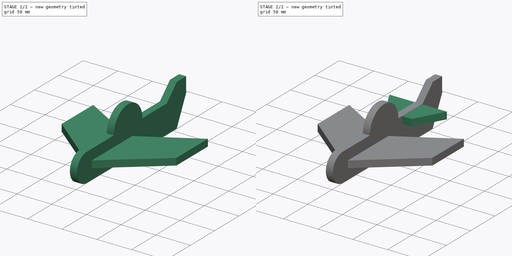
[diagram: build sequence overview — one tinted view per stage of 2, left to right]
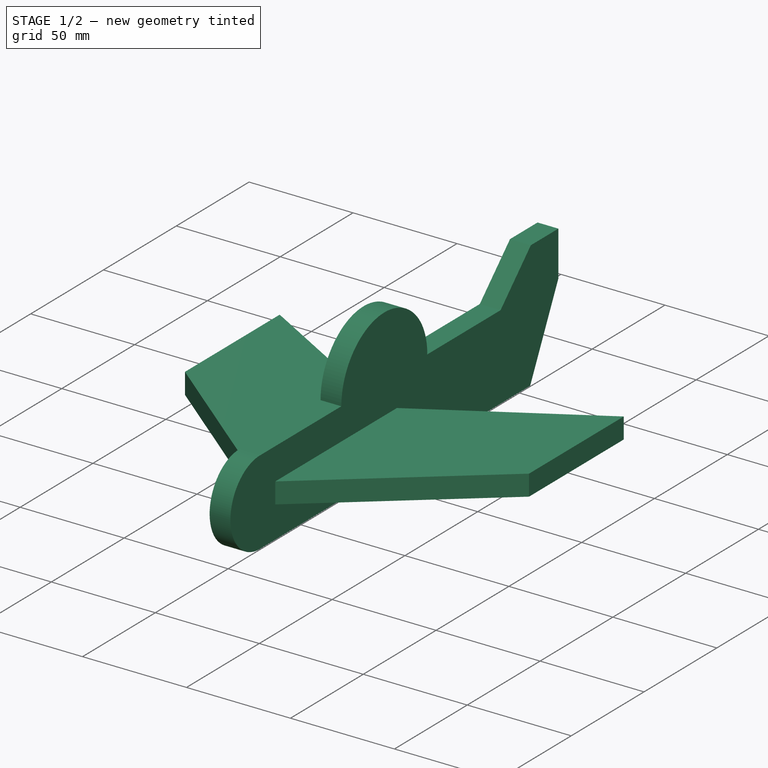
[diagram: stage 1 of 2 — iso view after this stage's code; geometry added in this stage tinted green]
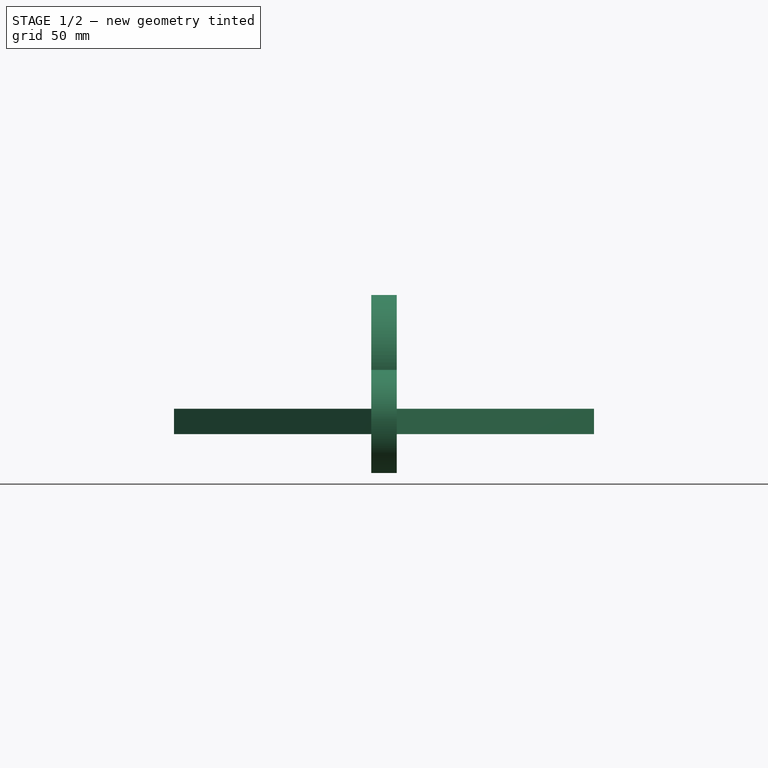
[diagram: stage 1 of 2 — front view after this stage's code; geometry added in this stage tinted green]
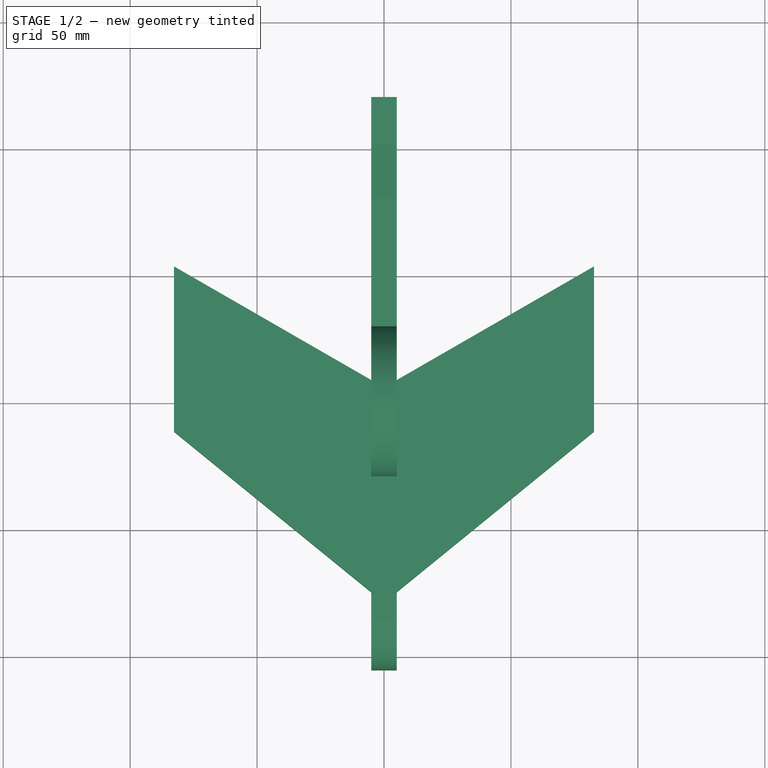
[diagram: stage 1 of 2 — top view after this stage's code; geometry added in this stage tinted green]
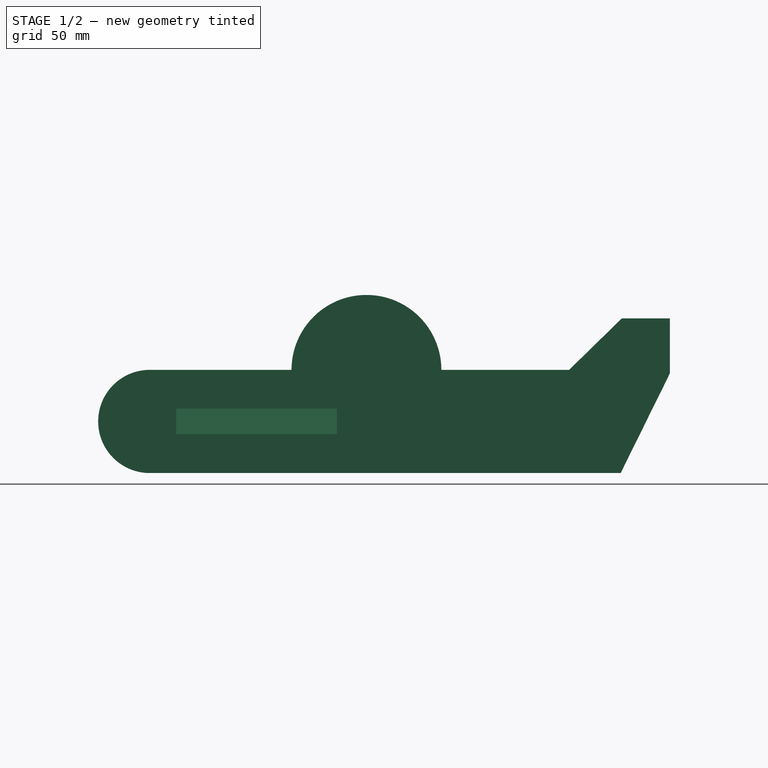
[diagram: stage 1 of 2 — right view after this stage's code; geometry added in this stage tinted green]
FCSTD DOCUMENT  (FreeCAD 0.18R4 (GitTag))
Label: 2
License: All rights reserved
LicenseURL: http://en.wikipedia.org/wiki/All_rights_reserved
objects: Sketcher::SketchObject×3, PartDesign::Pad×3, PartDesign::Body×1
note: 10 computed .brp shape members not serialized (recipe doc carries the construction recipe); baked Part::Feature solids carry a one-line shape summary decoded from their .brp

FEATURE [Sketcher::SketchObject] Sketch
  MapMode = 5
  Placement = pos=(0,0,0) rot=(0.57735,0.57735,0.57735;2.0944rad)
  Support = -> [YZ_Plane]
  sketch-geometry (10):
    g0: LineSegment StartX=79.9853 StartY=20.323 StartZ=0 EndX=100.764 EndY=40.6142 EndZ=0
    g1: LineSegment StartX=100.764 StartY=40.6142 StartZ=0 EndX=119.662 EndY=40.6142 EndZ=0
    g2: LineSegment StartX=119.662 StartY=40.6142 StartZ=0 EndX=119.662 EndY=18.903 EndZ=0
    g3: LineSegment StartX=119.662 StartY=18.903 StartZ=0 EndX=100.308 EndY=-20.29 EndZ=0
    g4: LineSegment StartX=100.308 StartY=-20.29 StartZ=0 EndX=-84.0343 EndY=-20.29 EndZ=0
    g5: LineSegment [constr] StartX=29.6634 StartY=20.323 StartZ=0 EndX=-29.3682 EndY=20.323 EndZ=0
    g6: ArcOfCircle CenterX=-85.2092 CenterY=0 CenterZ=0 NormalX=0 NormalY=0 NormalZ=1 AngleXU=0 Radius=20.324 StartAngle=1.561 EndAngle=4.77023
    g7: ArcOfCircle CenterX=0.147601 CenterY=20.323 CenterZ=0 NormalX=0 NormalY=0 NormalZ=1 AngleXU=0 Radius=29.5158 StartAngle=0 EndAngle=3.14159
    g8: LineSegment StartX=-85.0101 StartY=20.323 StartZ=0 EndX=-29.3682 EndY=20.323 EndZ=0
    g9: LineSegment StartX=29.6634 StartY=20.323 StartZ=0 EndX=79.9853 EndY=20.323 EndZ=0
  constraints (19):
    c: Coincident(g0,g1)
    c: Coincident(g1,g2)
    c: Coincident(g2,g3)
    c: Horizontal(g4)
    c: Vertical(g2)
    c: Horizontal(g1)
    c: Coincident(g6,g4)
    c: Coincident(g7,g5)
    c: Coincident(g7,g5)
    c: PointOnObject(g6,g-1)
    c: Horizontal(g8)
    c: Coincident(g8,g6)
    c: Coincident(g8,g7)
    c: Coincident(g9,g7)
    c: Coincident(g9,g0)
    c: Horizontal(g9)
    c: Horizontal(g5)
    c: PointOnObject(g7,g5)
    c: Coincident(g4,g3)
FEATURE [PartDesign::Pad] Pad
  Length = 10
  Length2 = 100
  Midplane = true
  Placement = pos=(0,0,0) rot=(0.57735,0.57735,0.57735;2.0944rad)
  Profile = -> Sketch
  Type = 0
FEATURE [Sketcher::SketchObject] Sketch001
  MapMode = 5
  Support = -> [XY_Plane]
  sketch-geometry (6):
    g0: LineSegment StartX=-82.7309 StartY=-11.4785 StartZ=0 EndX=-82.7309 EndY=53.5774 EndZ=0
    g1: LineSegment StartX=-82.7309 StartY=53.5774 StartZ=0 EndX=0 EndY=5.91233 EndZ=0
    g2: LineSegment StartX=0 StartY=5.91233 StartZ=0 EndX=82.7309 EndY=53.5774 EndZ=0
    g3: LineSegment StartX=82.7309 StartY=53.5774 StartZ=0 EndX=82.7309 EndY=-11.4785 EndZ=0
    g4: LineSegment StartX=82.7309 StartY=-11.4785 StartZ=0 EndX=0 EndY=-78.8325 EndZ=0
    g5: LineSegment StartX=0 StartY=-78.8325 StartZ=0 EndX=-82.7309 EndY=-11.4785 EndZ=0
  constraints (11):
    c: Coincident(g0,g1)
    c: Coincident(g1,g2)
    c: Coincident(g2,g3)
    c: Coincident(g3,g4)
    c: Coincident(g4,g5)
    c: Coincident(g5,g0)
    c: Vertical(g0)
    c: Vertical(g3)
    c: PointOnObject(g4,g-2)
    c: Symmetric(g0,g3,g-2)
    c: PointOnObject(g1,g-2)
FEATURE [PartDesign::Pad] Pad001
  BaseFeature = -> Pad
  Length = 10
  Length2 = 100
  Midplane = true
  Placement = pos=(0,0,0) rot=(0.57735,0.57735,0.57735;2.0944rad)
  Profile = -> Sketch001
  Type = 0
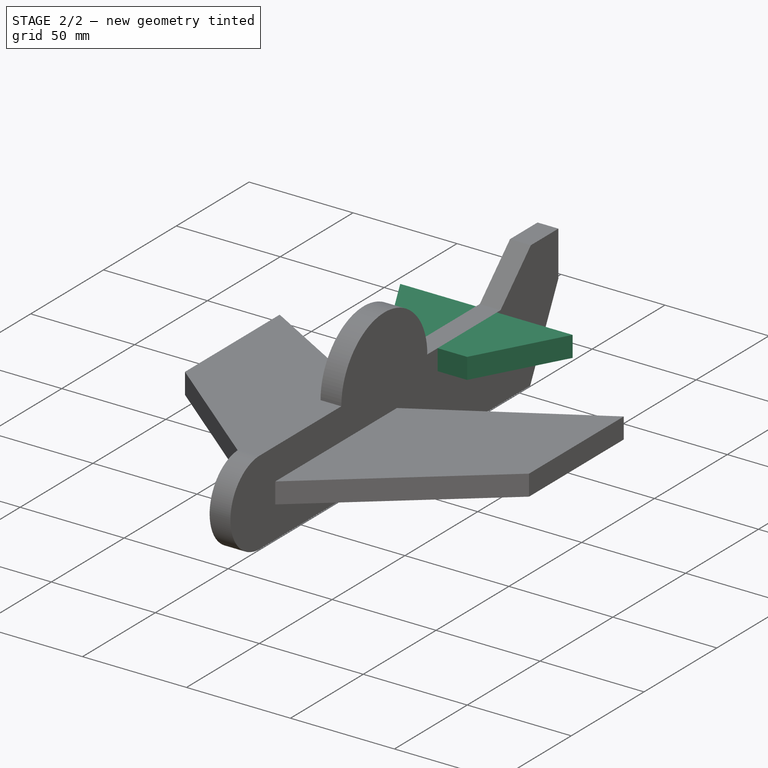
[diagram: stage 2 of 2 — iso view after this stage's code; geometry added in this stage tinted green]
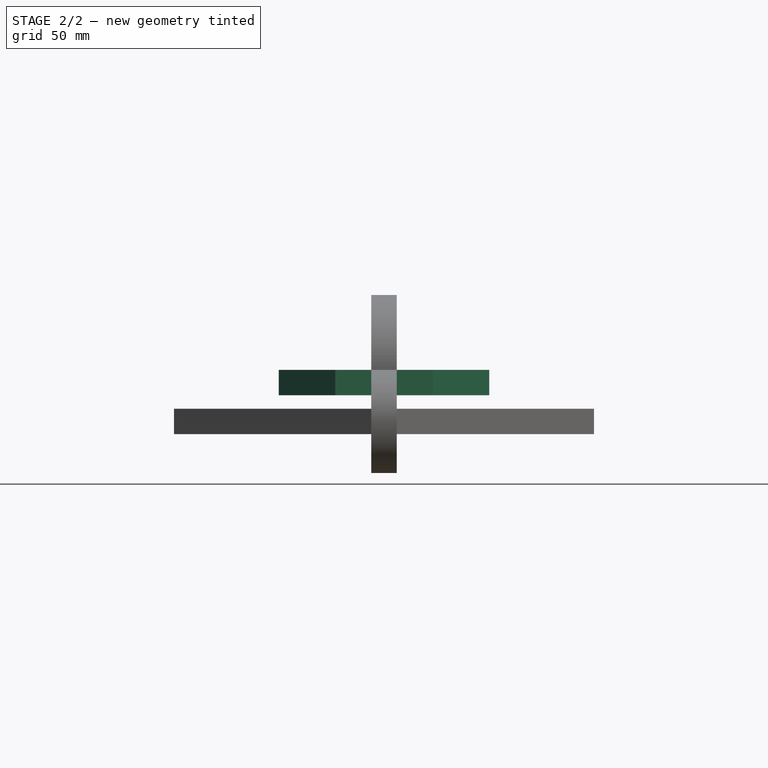
[diagram: stage 2 of 2 — front view after this stage's code; geometry added in this stage tinted green]
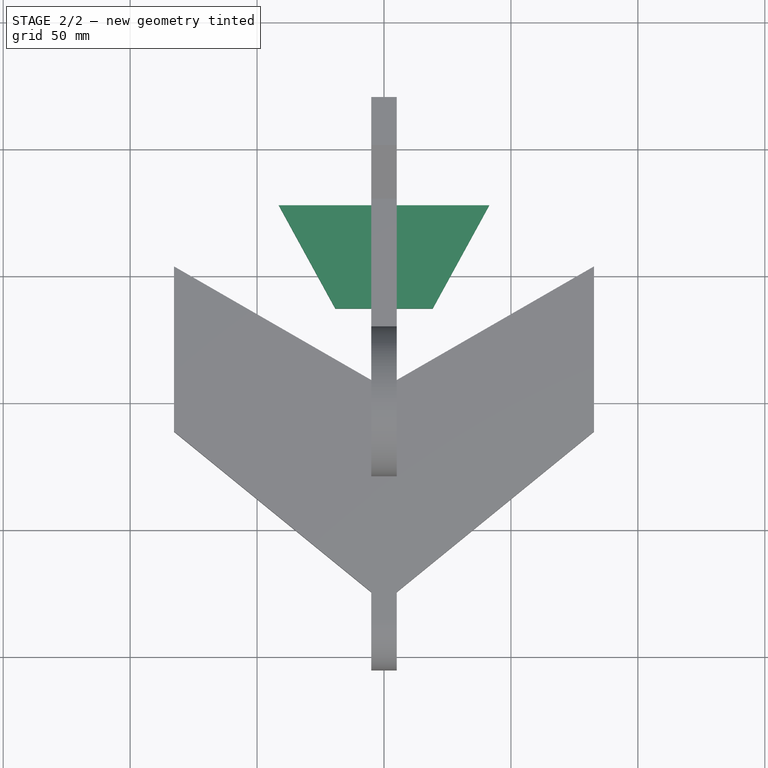
[diagram: stage 2 of 2 — top view after this stage's code; geometry added in this stage tinted green]
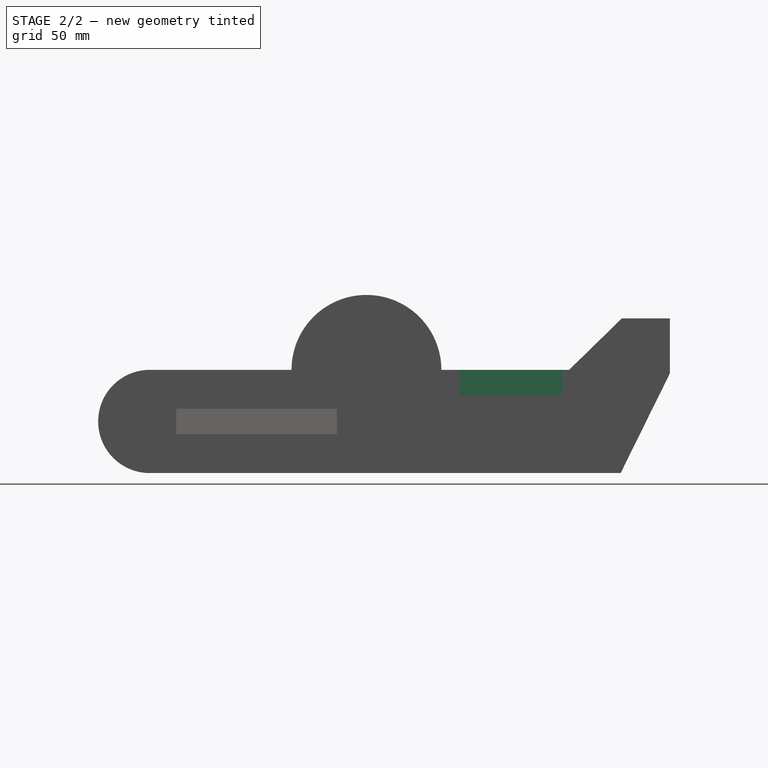
[diagram: stage 2 of 2 — right view after this stage's code; geometry added in this stage tinted green]
FEATURE [Sketcher::SketchObject] Sketch002
  MapMode = 5
  Placement = pos=(-1.47e-14,1.35e-14,20.323) rot=(0,0,-1;1.5708rad)
  Support = -> [Pad001]
  sketch-geometry (4):
    g0: LineSegment StartX=-77.4025 StartY=41.4444 StartZ=0 EndX=-77.4025 EndY=-41.4444 EndZ=0
    g1: LineSegment StartX=-77.4025 StartY=-41.4444 StartZ=0 EndX=-36.7579 EndY=-19.1867 EndZ=0
    g2: LineSegment StartX=-36.7579 StartY=-19.1867 StartZ=0 EndX=-36.7579 EndY=19.1867 EndZ=0
    g3: LineSegment StartX=-36.7579 StartY=19.1867 StartZ=0 EndX=-77.4025 EndY=41.4444 EndZ=0
  constraints (6):
    c: Coincident(g0,g1)
    c: Coincident(g1,g2)
    c: Coincident(g2,g3)
    c: Coincident(g3,g0)
    c: Symmetric(g2,g1,g-1)
    c: Symmetric(g0,g0,g-1)
FEATURE [PartDesign::Pad] Pad002
  BaseFeature = -> Pad001
  Length = 10
  Length2 = 100
  Placement = pos=(0,0,0) rot=(0.57735,0.57735,0.57735;2.0944rad)
  Profile = -> Sketch002
  Reversed = true
  Type = 0
FEATURE [PartDesign::Body] Body
  Group = -> [Sketch,Pad,Sketch001,Pad001,Sketch002,Pad002]
  Origin = -> Origin
  Tip = -> Pad002
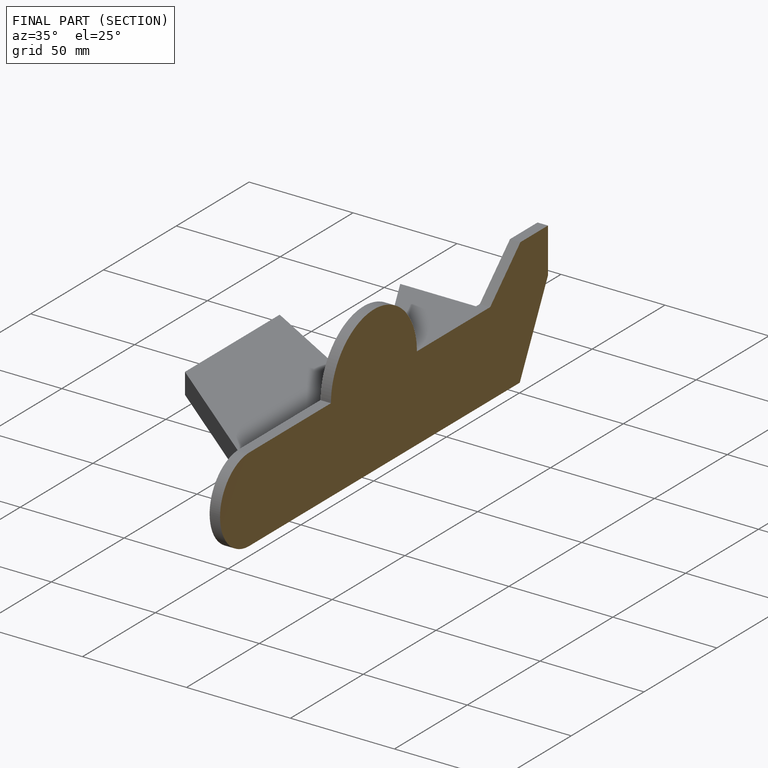
[diagram: finished part — half-section view (interior)]
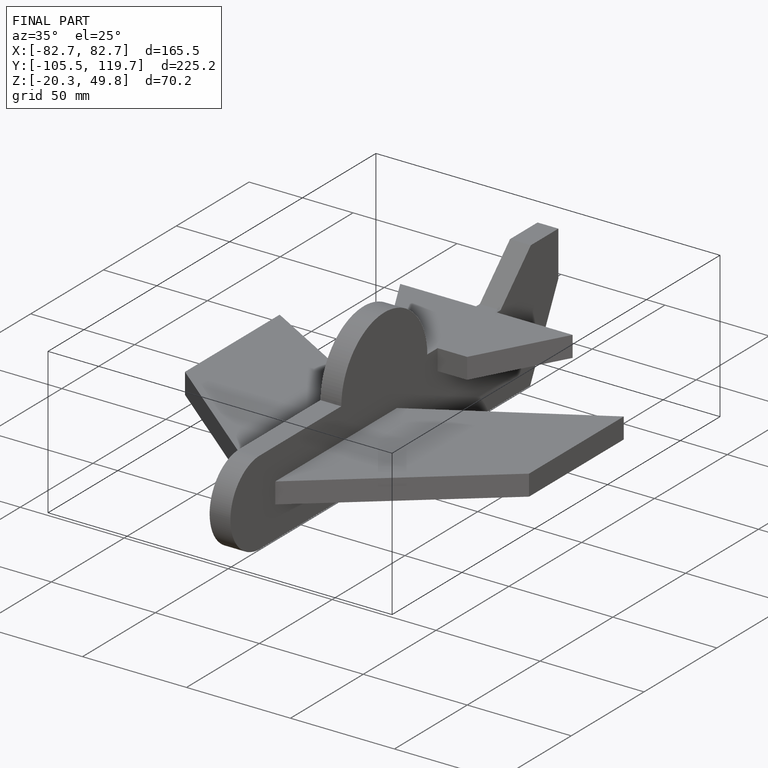
[diagram: finished part — iso view with bounding-box wireframe]
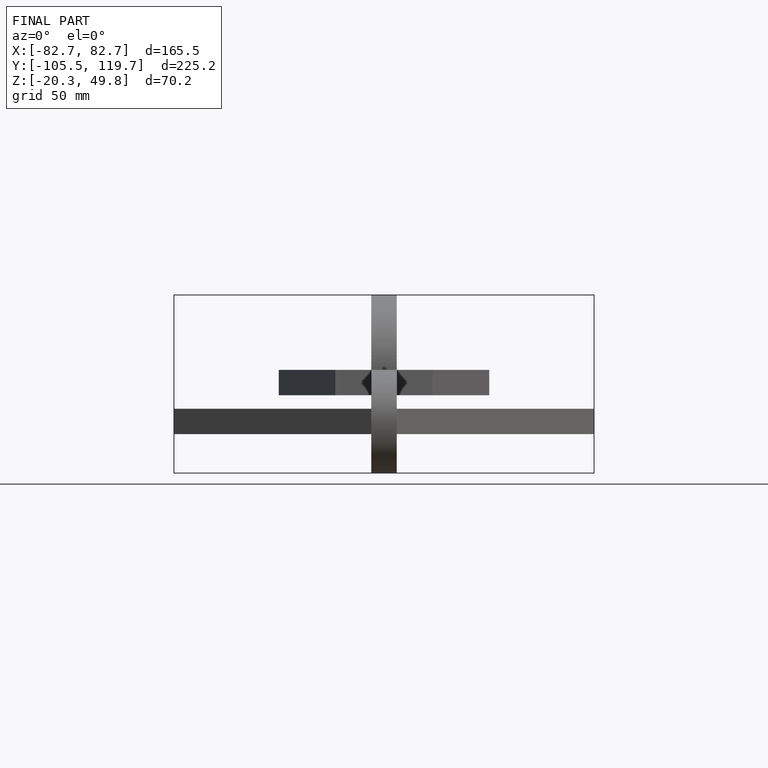
[diagram: finished part — front view with bounding-box wireframe]
